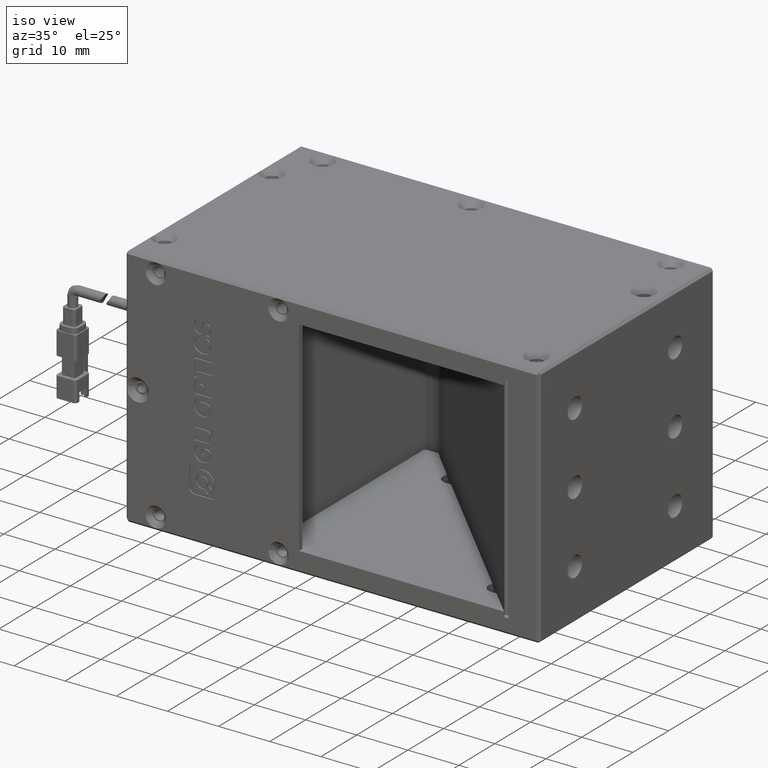
[diagram: clean part render]
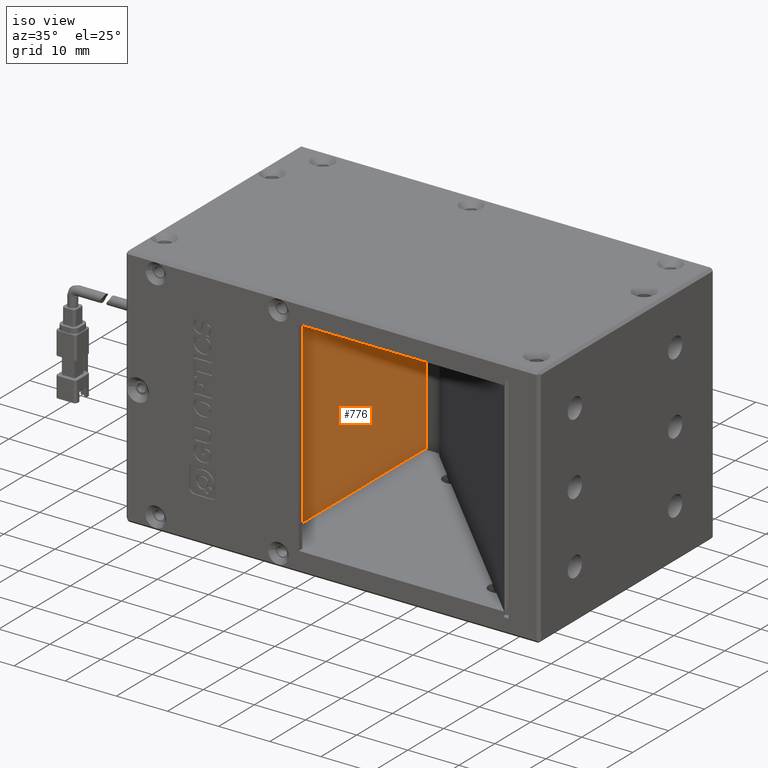
[diagram: same view with one face highlighted and labeled with its STEP entity id]
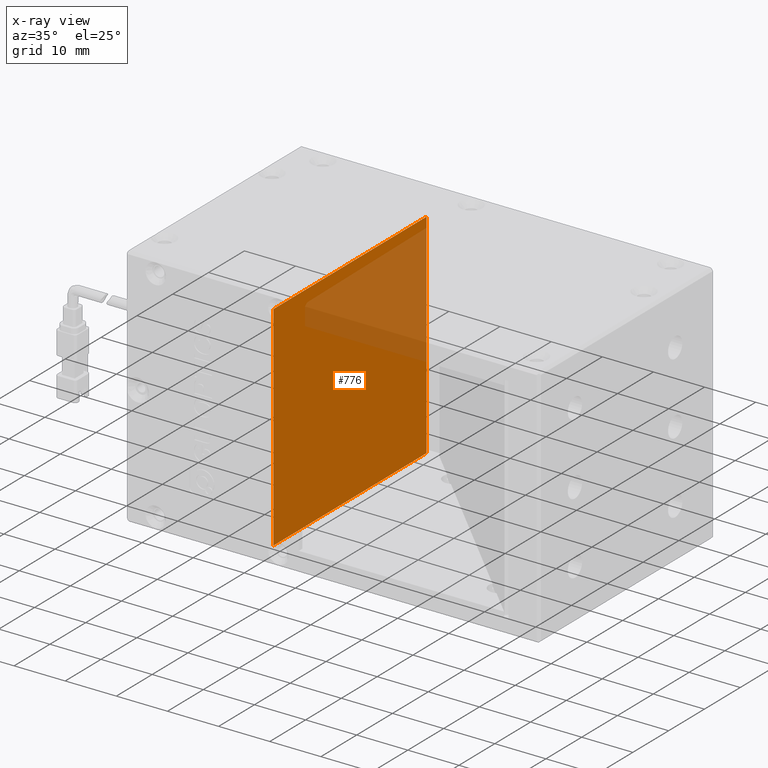
[diagram: x-ray of the same camera — body ghosted, the highlighted face saturated]
A machine part, iso view. The second image highlights one B-rep face of the part: STEP entity #776.
The next image is the same camera in x-ray: the body ghosted, the highlighted face saturated — about 26% of this face is hidden behind the body in this view.
In plain terms, the highlighted planar face has unit normal (1, 0, -0).
Its self-contained STEP definition (entity closure, byte-faithful):
#776 = ADVANCED_FACE ( 'NONE', ( #8002 ), #17650, .T. ) ;
#1282 = ORIENTED_EDGE ( 'NONE', *, *, #19115, .T. ) ;
#1353 = DIRECTION ( 'NONE',  ( -0.0000000000000000000, -0.0000000000000000000, -1.000000000000000000 ) ) ;
#2150 = VERTEX_POINT ( 'NONE', #14226 ) ;
#2262 = CARTESIAN_POINT ( 'NONE',  ( -16.24090188148067100, 35.54734783201998000, 4.799999999995072200 ) ) ;
#2554 = LINE ( 'NONE', #16827, #19800 ) ;
#3427 = DIRECTION ( 'NONE',  ( -0.0000000000000000000, -0.0000000000000000000, 1.000000000000000000 ) ) ;
#4436 = ORIENTED_EDGE ( 'NONE', *, *, #25978, .T. ) ;
#5402 = CARTESIAN_POINT ( 'NONE',  ( -16.24090188147999900, 14.14734783201900600, -37.00000000000009900 ) ) ;
#7675 = CARTESIAN_POINT ( 'NONE',  ( -16.24090188148134600, 14.14734783201900600, 4.799999999995000300 ) ) ;
#8002 = FACE_OUTER_BOUND ( 'NONE', #18080, .T. ) ;
#9134 = VERTEX_POINT ( 'NONE', #25769 ) ;
#9894 = DIRECTION ( 'NONE',  ( -0.0000000000000000000, -1.000000000000000000, -0.0000000000000000000 ) ) ;
#9903 = VERTEX_POINT ( 'NONE', #2262 ) ;
#10906 = LINE ( 'NONE', #19336, #28157 ) ;
#11481 = AXIS2_PLACEMENT_3D ( 'NONE', #26742, #13301, #29034 ) ;
#13073 = EDGE_CURVE ( 'NONE', #28099, #9903, #2554, .T. ) ;
#13301 = DIRECTION ( 'NONE',  ( 1.000000000000000000, 0.0000000000000000000, -0.0000000000000000000 ) ) ;
#14226 = CARTESIAN_POINT ( 'NONE',  ( -16.24090188148067100, -7.252652167981973500, 4.799999999995072200 ) ) ;
#14415 = DIRECTION ( 'NONE',  ( -0.0000000000000000000, 1.000000000000000000, -0.0000000000000000000 ) ) ;
#14824 = VECTOR ( 'NONE', #14415, 1000.000000000000000 ) ;
#16827 = CARTESIAN_POINT ( 'NONE',  ( -16.24090188148134600, 35.54734783202000200, -16.10000000000250600 ) ) ;
#17650 = PLANE ( 'NONE',  #11481 ) ;
#18080 = EDGE_LOOP ( 'NONE', ( #25767, #4436, #21168, #1282 ) ) ;
#19115 = EDGE_CURVE ( 'NONE', #9903, #2150, #26060, .T. ) ;
#19336 = CARTESIAN_POINT ( 'NONE',  ( -16.24090188147999900, -7.252652167981964700, -16.10000000000250600 ) ) ;
#19800 = VECTOR ( 'NONE', #3427, 1000.000000000000000 ) ;
#20680 = CARTESIAN_POINT ( 'NONE',  ( -16.24090188148100800, 35.54734783201998000, -37.00000000000005000 ) ) ;
#21168 = ORIENTED_EDGE ( 'NONE', *, *, #13073, .T. ) ;
#22123 = EDGE_CURVE ( 'NONE', #2150, #9134, #10906, .T. ) ;
#22153 = VECTOR ( 'NONE', #9894, 1000.000000000000000 ) ;
#25767 = ORIENTED_EDGE ( 'NONE', *, *, #22123, .T. ) ;
#25769 = CARTESIAN_POINT ( 'NONE',  ( -16.24090188148100800, -7.252652167981981500, -37.00000000000007100 ) ) ;
#25978 = EDGE_CURVE ( 'NONE', #9134, #28099, #26778, .T. ) ;
#26060 = LINE ( 'NONE', #7675, #22153 ) ;
#26742 = CARTESIAN_POINT ( 'NONE',  ( -16.24090188147999900, 36.40334783202001000, -37.83600000000000600 ) ) ;
#26778 = LINE ( 'NONE', #5402, #14824 ) ;
#28099 = VERTEX_POINT ( 'NONE', #20680 ) ;
#28157 = VECTOR ( 'NONE', #1353, 1000.000000000000000 ) ;
#29034 = DIRECTION ( 'NONE',  ( 0.0000000000000000000, 0.0000000000000000000, 1.000000000000000000 ) ) ;